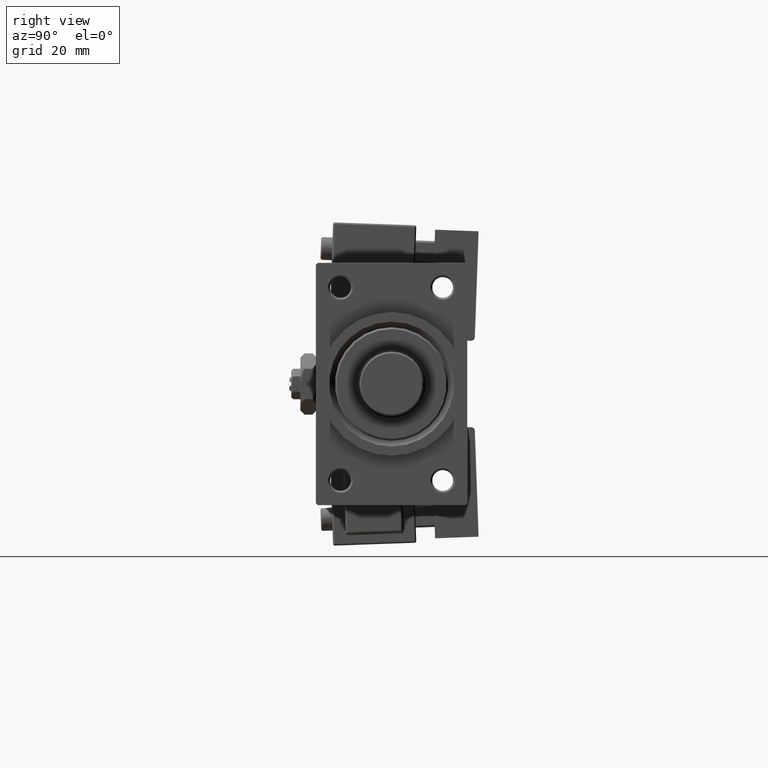
[diagram: clean part render]
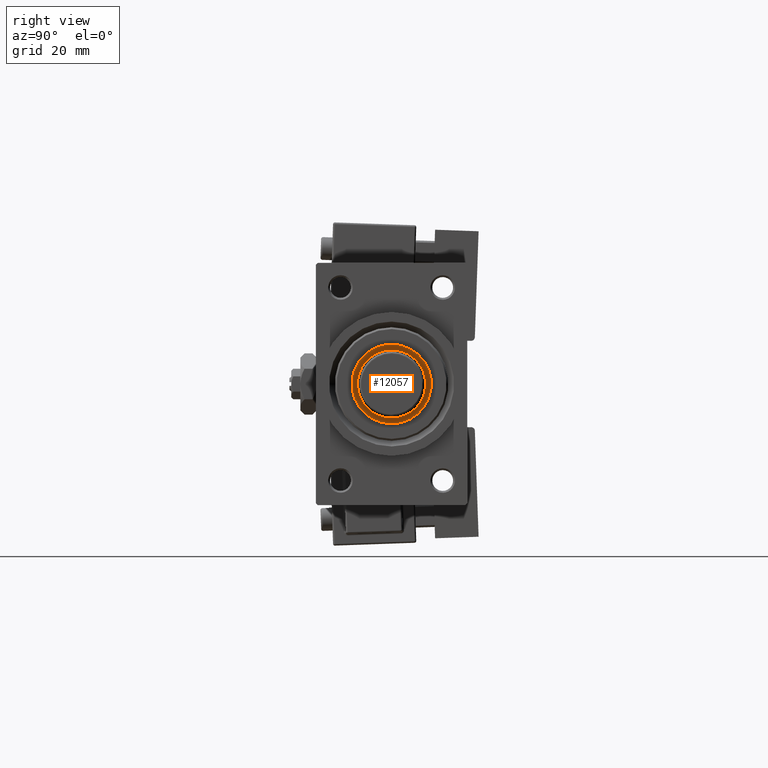
[diagram: same view with one face highlighted and labeled with its STEP entity id]
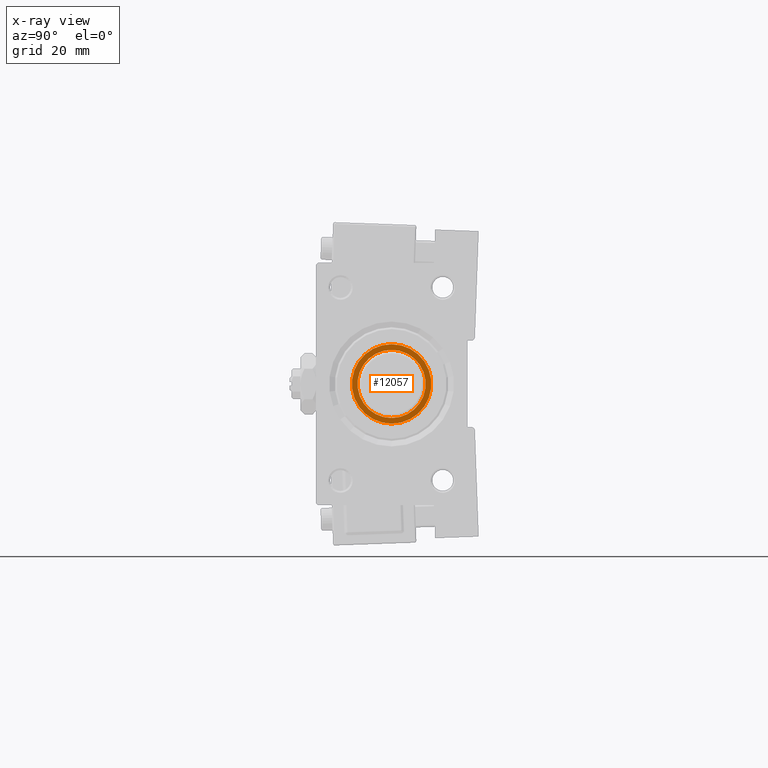
[diagram: x-ray of the same camera — body ghosted, the highlighted face saturated]
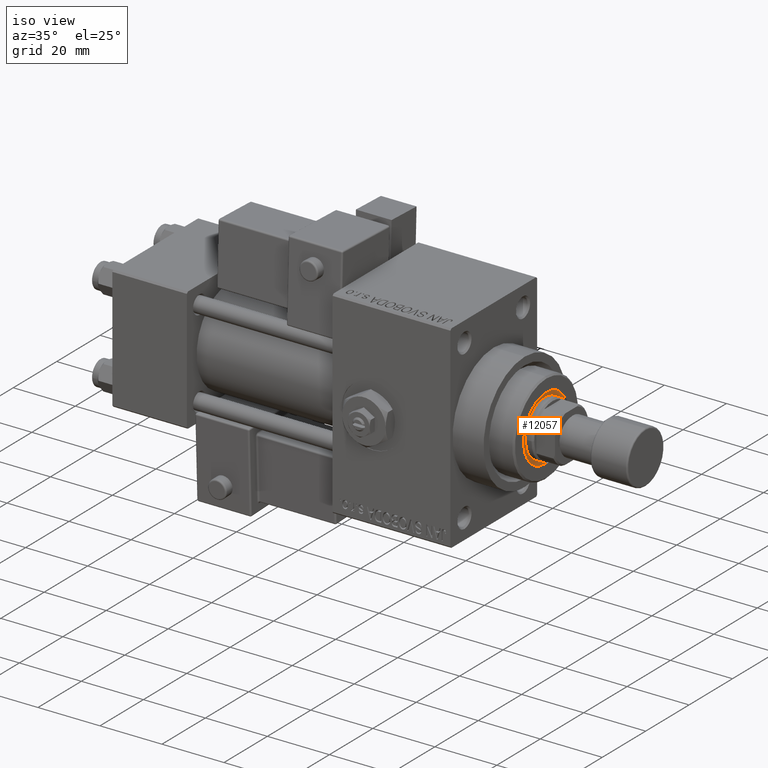
[diagram: same view with one face highlighted and labeled with its STEP entity id]
A machine part, right view. The second image highlights one B-rep face of the part: STEP entity #12057.
The next image is the same camera in x-ray: the body ghosted, the highlighted face saturated — about 0% of this face is hidden behind the body in this view.
A second angle (iso view) of the same face is appended — the face is thin or edge-on in the first view.
In plain terms, the highlighted planar face has unit normal (1, -0, -0).
Its self-contained STEP definition (entity closure, byte-faithful):
#1777 = CARTESIAN_POINT ( 'NONE',  ( 0.000000000000000000, 0.000000000000000000, 49.75999999999999801 ) ) ;
#1954 = VERTEX_POINT ( 'NONE', #50556 ) ;
#3730 = DIRECTION ( 'NONE',  ( 1.000000000000000000, 0.000000000000000000, 0.000000000000000000 ) ) ;
#4292 = ORIENTED_EDGE ( 'NONE', *, *, #36659, .T. ) ;
#4353 = EDGE_CURVE ( 'NONE', #10302, #1954, #31921, .T. ) ;
#4764 = AXIS2_PLACEMENT_3D ( 'NONE', #15229, #39678, #7679 ) ;
#7679 = DIRECTION ( 'NONE',  ( 1.000000000000000000, 0.000000000000000000, -0.000000000000000000 ) ) ;
#8609 = CARTESIAN_POINT ( 'NONE',  ( 0.000000000000000000, 0.000000000000000000, 49.75999999999999801 ) ) ;
#8703 = CARTESIAN_POINT ( 'NONE',  ( 0.000000000000000000, 0.000000000000000000, 49.75999999999999801 ) ) ;
#10302 = VERTEX_POINT ( 'NONE', #13134 ) ;
#11830 = PLANE ( 'NONE',  #4764 ) ;
#12057 = ADVANCED_FACE ( 'NONE', ( #47238, #50886 ), #11830, .T. ) ;
#13036 = EDGE_CURVE ( 'NONE', #24770, #49471, #23256, .T. ) ;
#13134 = CARTESIAN_POINT ( 'NONE',  ( 9.000000000000000000, 0.000000000000000000, 49.75999999999999801 ) ) ;
#13652 = CIRCLE ( 'NONE', #26149, 9.000000000000000000 ) ;
#13697 = CARTESIAN_POINT ( 'NONE',  ( 10.50000000000000000, 0.000000000000000000, 49.75999999999999801 ) ) ;
#15229 = CARTESIAN_POINT ( 'NONE',  ( 0.000000000000000000, 0.000000000000000000, 49.75999999999999801 ) ) ;
#18875 = AXIS2_PLACEMENT_3D ( 'NONE', #8609, #45032, #32551 ) ;
#20432 = CARTESIAN_POINT ( 'NONE',  ( -10.50000000000000000, 1.285879139104720831E-15, 49.75999999999999801 ) ) ;
#21354 = CIRCLE ( 'NONE', #18875, 10.50000000000000000 ) ;
#21568 = ORIENTED_EDGE ( 'NONE', *, *, #4353, .T. ) ;
#23256 = CIRCLE ( 'NONE', #41529, 10.50000000000000000 ) ;
#23893 = EDGE_LOOP ( 'NONE', ( #4292, #50358 ) ) ;
#24412 = DIRECTION ( 'NONE',  ( -0.000000000000000000, -0.000000000000000000, -1.000000000000000000 ) ) ;
#24770 = VERTEX_POINT ( 'NONE', #20432 ) ;
#25348 = DIRECTION ( 'NONE',  ( 0.000000000000000000, 0.000000000000000000, 1.000000000000000000 ) ) ;
#26149 = AXIS2_PLACEMENT_3D ( 'NONE', #39884, #27408, #3730 ) ;
#27408 = DIRECTION ( 'NONE',  ( -0.000000000000000000, -0.000000000000000000, -1.000000000000000000 ) ) ;
#28716 = EDGE_CURVE ( 'NONE', #1954, #10302, #13652, .T. ) ;
#29240 = DIRECTION ( 'NONE',  ( 1.000000000000000000, 0.000000000000000000, 0.000000000000000000 ) ) ;
#30152 = EDGE_LOOP ( 'NONE', ( #21568, #41454 ) ) ;
#31921 = CIRCLE ( 'NONE', #39391, 9.000000000000000000 ) ;
#32551 = DIRECTION ( 'NONE',  ( 1.000000000000000000, 0.000000000000000000, 0.000000000000000000 ) ) ;
#36659 = EDGE_CURVE ( 'NONE', #49471, #24770, #21354, .T. ) ;
#39391 = AXIS2_PLACEMENT_3D ( 'NONE', #1777, #24412, #40295 ) ;
#39678 = DIRECTION ( 'NONE',  ( 0.000000000000000000, 0.000000000000000000, 1.000000000000000000 ) ) ;
#39884 = CARTESIAN_POINT ( 'NONE',  ( 0.000000000000000000, 0.000000000000000000, 49.75999999999999801 ) ) ;
#40295 = DIRECTION ( 'NONE',  ( 1.000000000000000000, 0.000000000000000000, 0.000000000000000000 ) ) ;
#41454 = ORIENTED_EDGE ( 'NONE', *, *, #28716, .T. ) ;
#41529 = AXIS2_PLACEMENT_3D ( 'NONE', #8703, #25348, #29240 ) ;
#45032 = DIRECTION ( 'NONE',  ( 0.000000000000000000, 0.000000000000000000, 1.000000000000000000 ) ) ;
#47238 = FACE_OUTER_BOUND ( 'NONE', #23893, .T. ) ;
#49471 = VERTEX_POINT ( 'NONE', #13697 ) ;
#50358 = ORIENTED_EDGE ( 'NONE', *, *, #13036, .T. ) ;
#50556 = CARTESIAN_POINT ( 'NONE',  ( -9.000000000000000000, 1.102182119232617714E-15, 49.75999999999999801 ) ) ;
#50886 = FACE_BOUND ( 'NONE', #30152, .T. ) ;